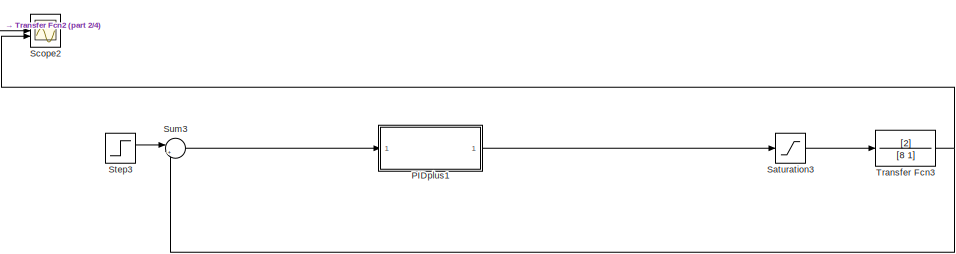
[diagram: root canvas - part 1/4, top right region]
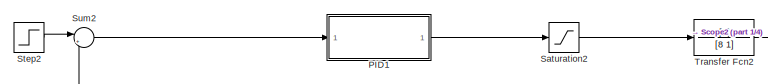
[diagram: root canvas - part 2/4, top left region]
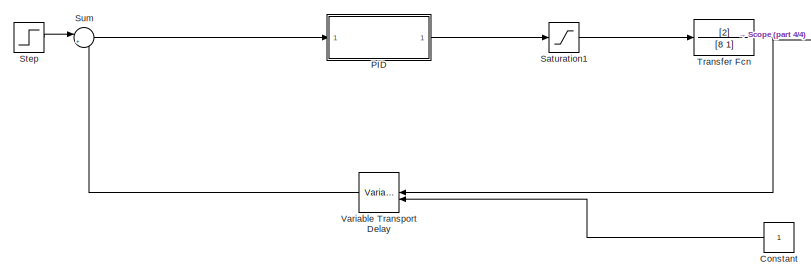
[diagram: root canvas - part 3/4, bottom left region]
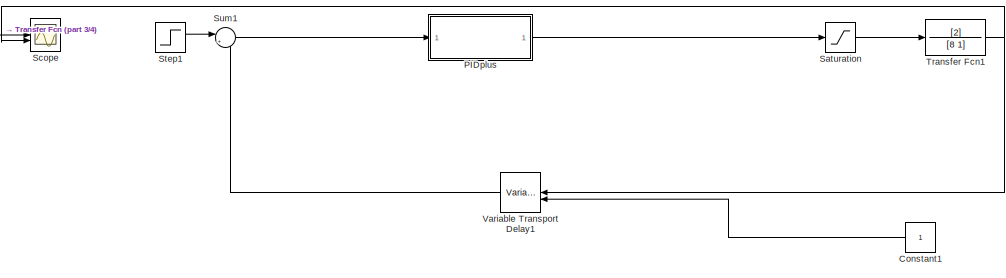
[diagram: root canvas - part 4/4, bottom right region]
MODEL slx_2bf0878e545b
KIND model
CONFIG AbsTol = auto
CONFIG EnableMultiTasking = off
CONFIG FixedStep = auto
CONFIG MaxStep = auto
CONFIG MinStep = auto
CONFIG RelTol = 1e-3
CONFIG SampleTimeConstraint = Unconstrained
CONFIG SolverName = VariableStepAuto
CONFIG StartTime = 0.0
CONFIG StopTime = 50
BLOCK [Constant] Constant
  NameLocation = top
BLOCK [Constant] Constant1
  NameLocation = top
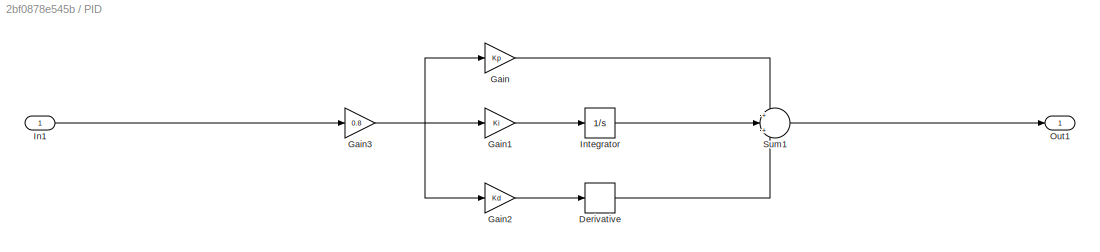
BLOCK [SubSystem] PID
BLOCK [Derivative] PID/Derivative
BLOCK [Gain] PID/Gain
  Gain = Kp
BLOCK [Gain] PID/Gain1
  Gain = Ki
BLOCK [Gain] PID/Gain2
  Gain = Kd
BLOCK [Gain] PID/Gain3
  Gain = 0.8
BLOCK [Inport] PID/In1
BLOCK [Integrator] PID/Integrator
BLOCK [Outport] PID/Out1
BLOCK [Sum] PID/Sum1
  Inputs = +|+|+
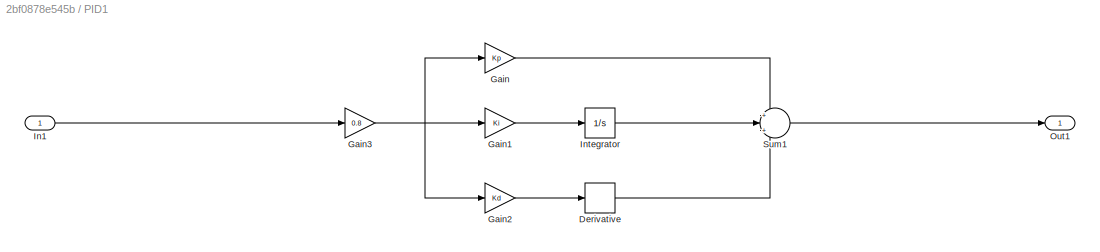
BLOCK [SubSystem] PID1
BLOCK [Derivative] PID1/Derivative
BLOCK [Gain] PID1/Gain
  Gain = Kp
BLOCK [Gain] PID1/Gain1
  Gain = Ki
BLOCK [Gain] PID1/Gain2
  Gain = Kd
BLOCK [Gain] PID1/Gain3
  Gain = 0.8
BLOCK [Inport] PID1/In1
BLOCK [Integrator] PID1/Integrator
BLOCK [Outport] PID1/Out1
BLOCK [Sum] PID1/Sum1
  Inputs = +|+|+
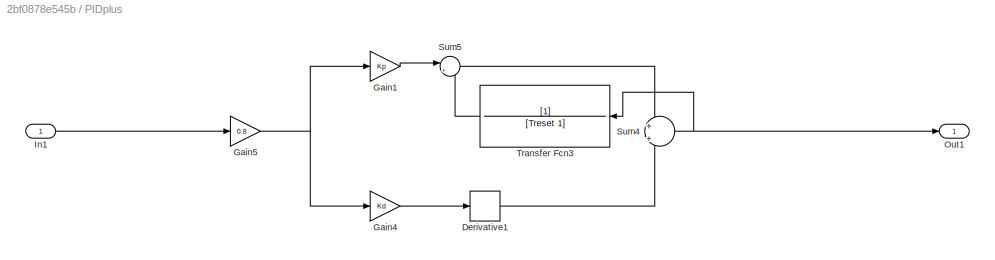
BLOCK [SubSystem] PIDplus
BLOCK [Derivative] PIDplus/Derivative1
BLOCK [Gain] PIDplus/Gain1
  Gain = Kp
BLOCK [Gain] PIDplus/Gain4
  Gain = Kd
BLOCK [Gain] PIDplus/Gain5
  Gain = 0.8
BLOCK [Inport] PIDplus/In1
BLOCK [Outport] PIDplus/Out1
BLOCK [Sum] PIDplus/Sum4
  Inputs = +|+
BLOCK [Sum] PIDplus/Sum5
  Inputs = |++
BLOCK [TransferFcn] PIDplus/Transfer Fcn3
  Denominator = [Treset 1]
  NameLocation = top
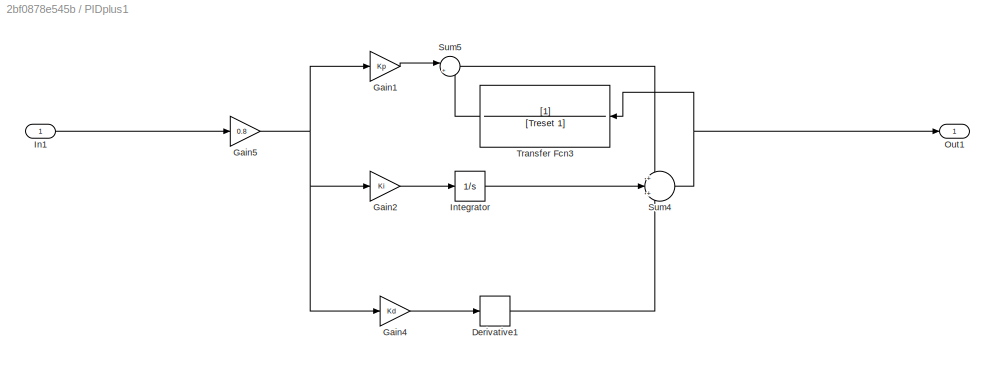
BLOCK [SubSystem] PIDplus1
BLOCK [Derivative] PIDplus1/Derivative1
BLOCK [Gain] PIDplus1/Gain1
  Gain = Kp
BLOCK [Gain] PIDplus1/Gain2
  Gain = Ki
BLOCK [Gain] PIDplus1/Gain4
  Gain = Kd
BLOCK [Gain] PIDplus1/Gain5
  Gain = 0.8
BLOCK [Inport] PIDplus1/In1
BLOCK [Integrator] PIDplus1/Integrator
BLOCK [Outport] PIDplus1/Out1
BLOCK [Sum] PIDplus1/Sum4
  Inputs = +|+|+
BLOCK [Sum] PIDplus1/Sum5
  Inputs = |++
BLOCK [TransferFcn] PIDplus1/Transfer Fcn3
  Denominator = [Treset 1]
  NameLocation = top
BLOCK [Saturate] Saturation
BLOCK [Saturate] Saturation1
BLOCK [Saturate] Saturation2
BLOCK [Saturate] Saturation3
BLOCK [Scope] Scope
  Floating = off
  NumInputPorts = 2
  ScopeSpecificationString = Simulink.scopes.TimeScopeBlockCfg('CurrentConfiguration', extmgr.ConfigurationSet(extmgr.Configuration('Core','General UI',true),extmgr.Configuration('Core','Source UI',true),extmgr.Configuration('Sources','WiredSimulink',true),extmgr.Configuration('Visuals','Time Domain',true,'SerializedDisplays',{struct('MinYLimReal','-0.12473','MaxYLimReal','1.12254','YLabelReal','','MinYLimMag','0.00000','MaxY...<+1379ch>
BLOCK [Scope] Scope2
  Floating = off
  NumInputPorts = 2
  ScopeSpecificationString = Simulink.scopes.TimeScopeBlockCfg('CurrentConfiguration', extmgr.ConfigurationSet(extmgr.Configuration('Core','General UI',true),extmgr.Configuration('Core','Source UI',true),extmgr.Configuration('Sources','WiredSimulink',true,'DataLoggingVariableName','ScopeData2'),extmgr.Configuration('Visuals','Time Domain',true,'SerializedDisplays',{struct('MinYLimReal','-0.12473','MaxYLimReal','1.12254','YLab...<+1419ch>
BLOCK [Step] Step
  SampleTime = 0
BLOCK [Step] Step1
  SampleTime = 0
BLOCK [Step] Step2
  SampleTime = 0
BLOCK [Step] Step3
  SampleTime = 0
BLOCK [Sum] Sum
  Inputs = |+-
BLOCK [Sum] Sum1
  Inputs = |+-
BLOCK [Sum] Sum2
  Inputs = |+-
BLOCK [Sum] Sum3
  Inputs = |+-
BLOCK [TransferFcn] Transfer Fcn
  Denominator = [8 1]
  Numerator = [2]
BLOCK [TransferFcn] Transfer Fcn1
  Denominator = [8 1]
  Numerator = [2]
BLOCK [TransferFcn] Transfer Fcn2
  Denominator = [8 1]
  Numerator = [2]
BLOCK [TransferFcn] Transfer Fcn3
  Denominator = [8 1]
  Numerator = [2]
BLOCK [VariableTransportDelay] Variable Transport Delay
  MaximumDelay = 10
  NameLocation = top
  VariableDelayType = Variable transport delay
BLOCK [VariableTransportDelay] Variable Transport Delay1
  MaximumDelay = 10
  NameLocation = top
  VariableDelayType = Variable transport delay
LINE Constant1:1 -> Variable Transport Delay1:2
LINE Constant:1 -> Variable Transport Delay:2
LINE PID/Derivative:1 -> PID/Sum1:3
LINE PID/Gain1:1 -> PID/Integrator:1
LINE PID/Gain2:1 -> PID/Derivative:1
NET PID/Gain3:1 -> PID/Gain1:1, PID/Gain2:1, PID/Gain:1
LINE PID/Gain:1 -> PID/Sum1:1
LINE PID/In1:1 -> PID/Gain3:1
LINE PID/Integrator:1 -> PID/Sum1:2
LINE PID/Sum1:1 -> PID/Out1:1
LINE PID1/Derivative:1 -> PID1/Sum1:3
LINE PID1/Gain1:1 -> PID1/Integrator:1
LINE PID1/Gain2:1 -> PID1/Derivative:1
NET PID1/Gain3:1 -> PID1/Gain1:1, PID1/Gain2:1, PID1/Gain:1
LINE PID1/Gain:1 -> PID1/Sum1:1
LINE PID1/In1:1 -> PID1/Gain3:1
LINE PID1/Integrator:1 -> PID1/Sum1:2
LINE PID1/Sum1:1 -> PID1/Out1:1
LINE PID1:1 -> Saturation2:1
LINE PID:1 -> Saturation1:1
LINE PIDplus/Derivative1:1 -> PIDplus/Sum4:2
LINE PIDplus/Gain1:1 -> PIDplus/Sum5:1
LINE PIDplus/Gain4:1 -> PIDplus/Derivative1:1
NET PIDplus/Gain5:1 -> PIDplus/Gain1:1, PIDplus/Gain4:1
LINE PIDplus/In1:1 -> PIDplus/Gain5:1
NET PIDplus/Sum4:1 -> PIDplus/Out1:1, PIDplus/Transfer Fcn3:1
LINE PIDplus/Sum5:1 -> PIDplus/Sum4:1
LINE PIDplus/Transfer Fcn3:1 -> PIDplus/Sum5:2
LINE PIDplus1/Derivative1:1 -> PIDplus1/Sum4:3
LINE PIDplus1/Gain1:1 -> PIDplus1/Sum5:1
LINE PIDplus1/Gain2:1 -> PIDplus1/Integrator:1
LINE PIDplus1/Gain4:1 -> PIDplus1/Derivative1:1
NET PIDplus1/Gain5:1 -> PIDplus1/Gain1:1, PIDplus1/Gain2:1, PIDplus1/Gain4:1
LINE PIDplus1/In1:1 -> PIDplus1/Gain5:1
LINE PIDplus1/Integrator:1 -> PIDplus1/Sum4:2
NET PIDplus1/Sum4:1 -> PIDplus1/Out1:1, PIDplus1/Transfer Fcn3:1
LINE PIDplus1/Sum5:1 -> PIDplus1/Sum4:1
LINE PIDplus1/Transfer Fcn3:1 -> PIDplus1/Sum5:2
LINE PIDplus1:1 -> Saturation3:1
LINE PIDplus:1 -> Saturation:1
LINE Saturation1:1 -> Transfer Fcn:1
LINE Saturation2:1 -> Transfer Fcn2:1
LINE Saturation3:1 -> Transfer Fcn3:1
LINE Saturation:1 -> Transfer Fcn1:1
LINE Step1:1 -> Sum1:1
LINE Step2:1 -> Sum2:1
LINE Step3:1 -> Sum3:1
LINE Step:1 -> Sum:1
LINE Sum1:1 -> PIDplus:1
LINE Sum2:1 -> PID1:1
LINE Sum3:1 -> PIDplus1:1
LINE Sum:1 -> PID:1
NET Transfer Fcn1:1 -> Scope:2, Variable Transport Delay1:1
NET Transfer Fcn2:1 -> Scope2:1, Sum2:2
NET Transfer Fcn3:1 -> Scope2:2, Sum3:2
NET Transfer Fcn:1 -> Scope:1, Variable Transport Delay:1
LINE Variable Transport Delay1:1 -> Sum1:2
LINE Variable Transport Delay:1 -> Sum:2
note: NET lines group one-source signal fan-out (src -> all destinations, sorted); 1:1 wires keep LINE
